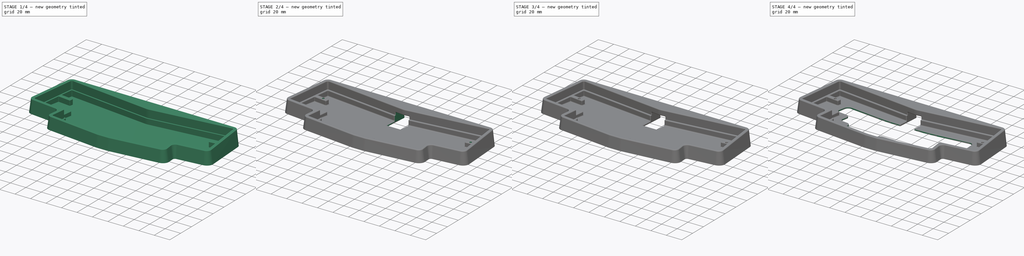
[diagram: build sequence overview — one tinted view per stage of 4, left to right]
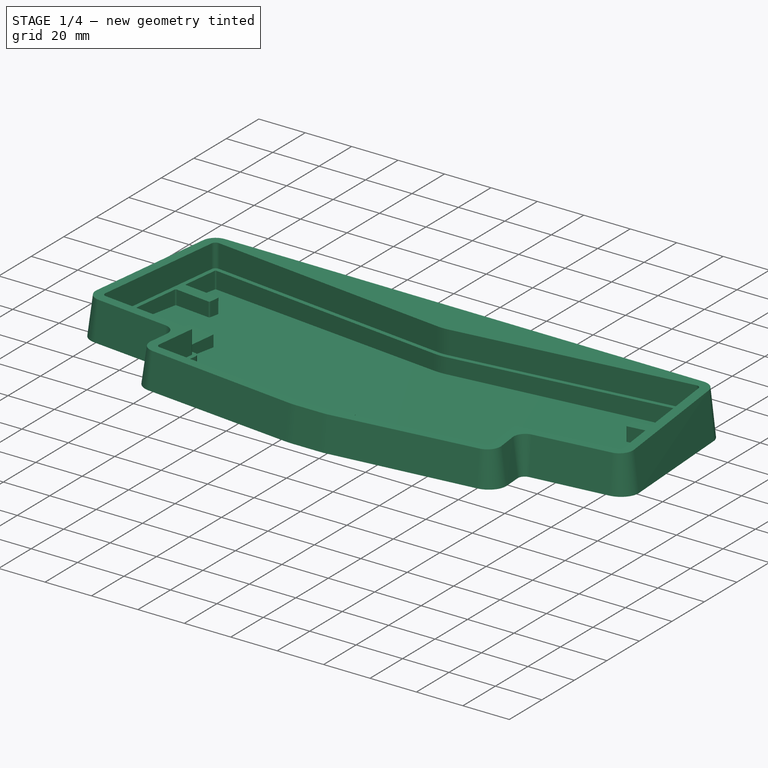
[diagram: stage 1 of 4 — iso view after this stage's code; geometry added in this stage tinted green]
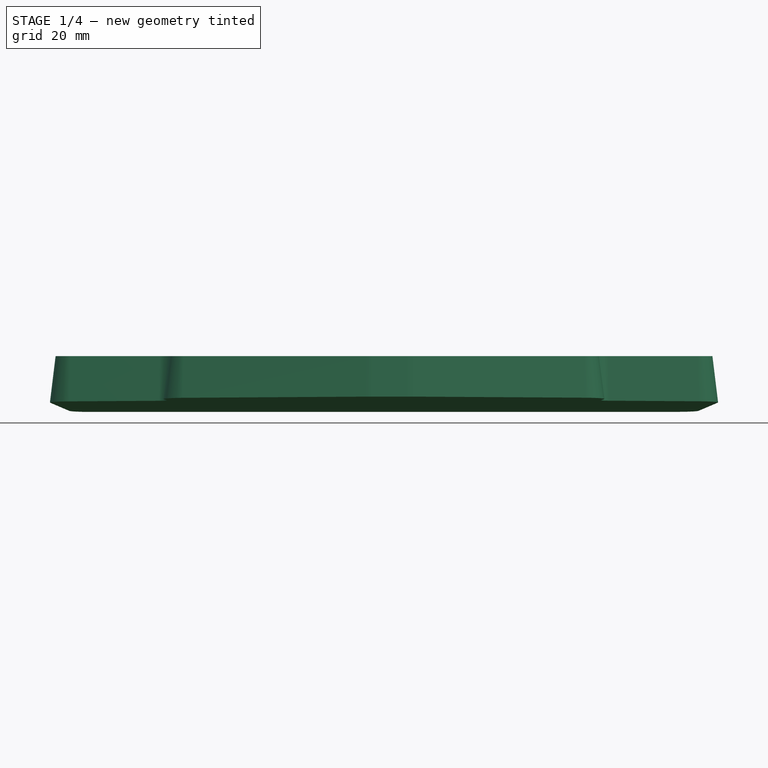
[diagram: stage 1 of 4 — front view after this stage's code; geometry added in this stage tinted green]
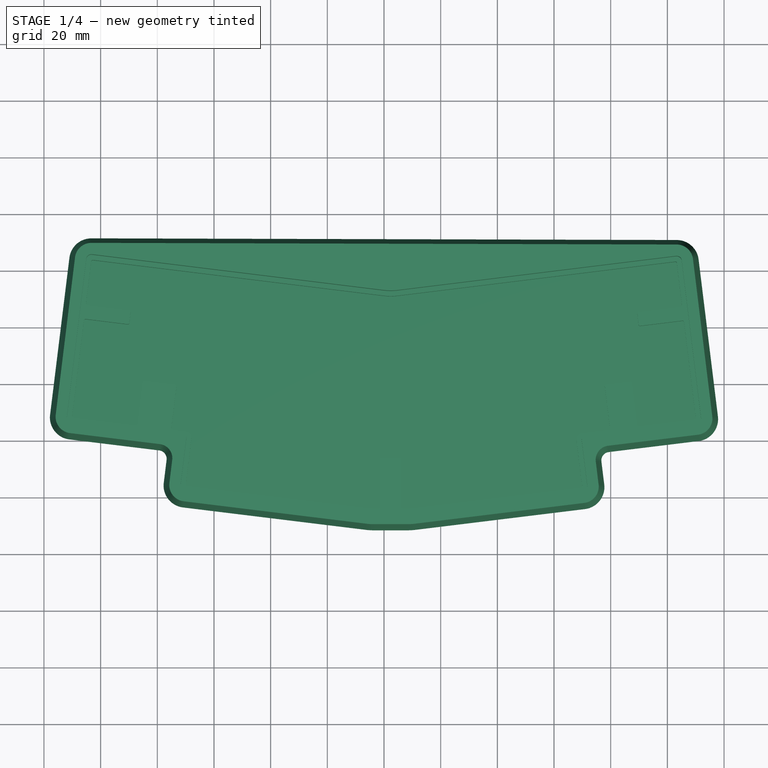
[diagram: stage 1 of 4 — top view after this stage's code; geometry added in this stage tinted green]
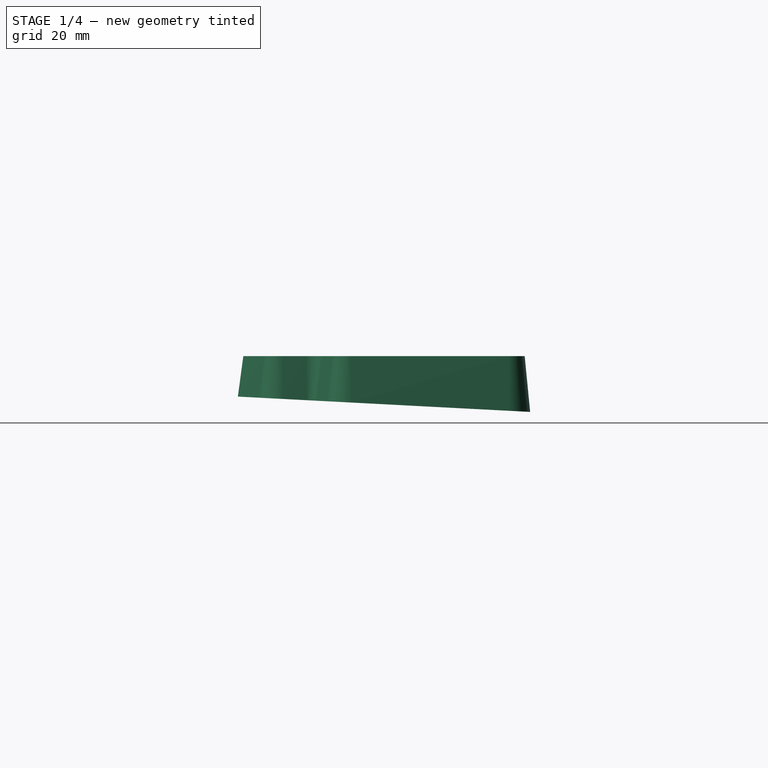
[diagram: stage 1 of 4 — right view after this stage's code; geometry added in this stage tinted green]
FCSTD DOCUMENT  (FreeCAD 0.20R)
Label: case
License: All rights reserved
LicenseURL: http://en.wikipedia.org/wiki/All_rights_reserved
objects: Sketcher::SketchObject×7, PartDesign::Pocket×4, PartDesign::Fillet×4, PartDesign::AdditiveLoft×1, PartDesign::Hole×1, PartDesign::Chamfer×1, PartDesign::Body×1
note: 30 computed .brp shape members not serialized (recipe doc carries the construction recipe); baked Part::Feature solids carry a one-line shape summary decoded from their .brp

FEATURE [Sketcher::SketchObject] Sketch
  AttachmentOffset = pos=(0,0,0) rot=(1,0,0;-0.05236rad)
  FullyConstrained = false
  MapMode = 5
  Placement = pos=(0,0,0) rot=(1,0,0;6.23083rad)
  Support = -> [XY_Plane]
  sketch-geometry (20):
    g0: ArcOfCircle CenterX=103.268 CenterY=43.2378 CenterZ=0 NormalX=0 NormalY=0 NormalZ=1 AngleXU=0 Radius=7.8 StartAngle=0.122173 EndAngle=1.56799
    g1: LineSegment StartX=111.01 StartY=44.1884 StartZ=0 EndX=117.835 EndY=-11.3942 EndZ=0
    g2: ArcOfCircle CenterX=110.093 CenterY=-12.3448 CenterZ=0 NormalX=0 NormalY=0 NormalZ=1 AngleXU=0 Radius=7.8 StartAngle=4.83456 EndAngle=6.40536
    g3: LineSegment StartX=79.3314 StartY=-23.9804 StartZ=0 EndX=111.043 EndY=-20.0867 EndZ=0
    g4: LineSegment StartX=76.7194 StartY=-27.3236 StartZ=0 EndX=77.7187 EndY=-35.4625 EndZ=0
    g5: ArcOfCircle CenterX=79.6971 CenterY=-26.958 CenterZ=0 NormalX=0 NormalY=0 NormalZ=1 AngleXU=0 Radius=3 StartAngle=1.69297 EndAngle=3.26377
    g6: ArcOfCircle CenterX=69.9769 CenterY=-36.4131 CenterZ=0 NormalX=0 NormalY=0 NormalZ=1 AngleXU=0 Radius=7.8 StartAngle=4.83456 EndAngle=6.40536
    g7: LineSegment StartX=11.0568 StartY=-51.5062 StartZ=0 EndX=70.9275 EndY=-44.155 EndZ=0
    g8: ArcOfCircle CenterX=8.37563 CenterY=-29.6701 CenterZ=0 NormalX=0 NormalY=0 NormalZ=1 AngleXU=0 Radius=22 StartAngle=4.71239 EndAngle=4.83456
    g9: LineSegment StartX=-3.66104 StartY=-51.6701 StartZ=0 EndX=8.37563 EndY=-51.6701 EndZ=0
    g10: LineSegment StartX=-70.9275 StartY=-43.5761 StartZ=0 EndX=-6.34216 EndY=-51.5062 EndZ=0
    g11: ArcOfCircle CenterX=-3.66104 CenterY=-29.6701 CenterZ=0 NormalX=0 NormalY=0 NormalZ=1 AngleXU=0 Radius=22 StartAngle=4.59022 EndAngle=4.71239
    g12: ArcOfCircle CenterX=-69.9769 CenterY=-35.8342 CenterZ=0 NormalX=0 NormalY=0 NormalZ=1 AngleXU=0 Radius=7.8 StartAngle=3.01942 EndAngle=4.59022
    g13: LineSegment StartX=-111.043 StartY=-19.5078 StartZ=0 EndX=-79.3314 EndY=-23.4015 EndZ=0
    g14: ArcOfCircle CenterX=-79.6971 CenterY=-26.3791 CenterZ=0 NormalX=0 NormalY=0 NormalZ=1 AngleXU=0 Radius=3 StartAngle=6.16101 EndAngle=7.73181
    g15: LineSegment StartX=-76.7194 StartY=-26.7448 StartZ=0 EndX=-77.7187 EndY=-34.8836 EndZ=0
    g16: ArcOfCircle CenterX=-110.093 CenterY=-11.7659 CenterZ=0 NormalX=0 NormalY=0 NormalZ=1 AngleXU=0 Radius=7.8 StartAngle=3.01942 EndAngle=4.59022
    g17: LineSegment StartX=-111.01 StartY=44.7672 StartZ=0 EndX=-117.835 EndY=-10.8153 EndZ=0
    g18: ArcOfCircle CenterX=-103.268 CenterY=43.8167 CenterZ=0 NormalX=0 NormalY=0 NormalZ=1 AngleXU=0 Radius=7.8 StartAngle=1.56799 EndAngle=3.01942
    g19: LineSegment StartX=-103.246 StartY=51.6166 StartZ=0 EndX=103.29 EndY=51.0377 EndZ=0
  constraints (20):
    c: Coincident(g16,g17)
    c: Coincident(g13,g16)
    c: Coincident(g17,g18)
    c: Coincident(g18,g19)
    c: Coincident(g13,g14)
    c: Coincident(g12,g15)
    c: Coincident(g14,g15)
    c: Coincident(g10,g12)
    c: Coincident(g10,g11)
    c: Coincident(g9,g11)
    c: Coincident(g8,g9)
    c: Coincident(g7,g8)
    c: Coincident(g6,g7)
    c: Coincident(g4,g5)
    c: Coincident(g4,g6)
    c: Coincident(g3,g5)
    c: Coincident(g0,g19)
    c: Coincident(g0,g1)
    c: Coincident(g2,g3)
    c: Coincident(g1,g2)
FEATURE [Sketcher::SketchObject] Sketch001
  AttachmentOffset = pos=(0,0,17) rot=(0,0,1;0rad)
  FullyConstrained = false
  MapMode = 5
  Placement = pos=(0,0,17) rot=(0,0,1;0rad)
  Support = -> [XY_Plane]
  sketch-geometry (20):
    g0: LineSegment StartX=109.025 StartY=43.9446 StartZ=0 EndX=115.849 EndY=-11.638 EndZ=0
    g1: ArcOfCircle CenterX=110.093 CenterY=-12.3448 CenterZ=0 NormalX=0 NormalY=0 NormalZ=1 AngleXU=0 Radius=5.8 StartAngle=4.83456 EndAngle=6.40536
    g2: ArcOfCircle CenterX=69.9769 CenterY=-36.4131 CenterZ=0 NormalX=0 NormalY=0 NormalZ=1 AngleXU=0 Radius=5.8 StartAngle=4.83456 EndAngle=6.40536
    g3: LineSegment StartX=10.813 StartY=-49.5211 StartZ=0 EndX=70.6837 EndY=-42.1699 EndZ=0
    g4: ArcOfCircle CenterX=8.37563 CenterY=-29.6701 CenterZ=0 NormalX=0 NormalY=0 NormalZ=1 AngleXU=0 Radius=20 StartAngle=4.71239 EndAngle=4.83456
    g5: LineSegment StartX=-3.66104 StartY=-49.6701 StartZ=0 EndX=8.37563 EndY=-49.6701 EndZ=0
    g6: LineSegment StartX=-70.6837 StartY=-41.591 StartZ=0 EndX=-6.09842 EndY=-49.5211 EndZ=0
    g7: ArcOfCircle CenterX=-3.66104 CenterY=-29.6701 CenterZ=0 NormalX=0 NormalY=0 NormalZ=1 AngleXU=0 Radius=20 StartAngle=4.59022 EndAngle=4.71239
    g8: LineSegment StartX=-109.025 StartY=44.5235 StartZ=0 EndX=-115.849 EndY=-11.0591 EndZ=0
    g9: ArcOfCircle CenterX=-110.093 CenterY=-11.7659 CenterZ=0 NormalX=0 NormalY=0 NormalZ=1 AngleXU=0 Radius=5.8 StartAngle=3.01942 EndAngle=4.59022
    g10: ArcOfCircle CenterX=-69.9769 CenterY=-35.8342 CenterZ=0 NormalX=0 NormalY=0 NormalZ=1 AngleXU=0 Radius=5.8 StartAngle=3.01942 EndAngle=4.59022
    g11: LineSegment StartX=74.7343 StartY=-27.5674 StartZ=0 EndX=75.7337 EndY=-35.7063 EndZ=0
    g12: LineSegment StartX=79.0877 StartY=-21.9953 StartZ=0 EndX=110.8 EndY=-18.1016 EndZ=0
    g13: ArcOfCircle CenterX=79.6971 CenterY=-26.958 CenterZ=0 NormalX=0 NormalY=0 NormalZ=1 AngleXU=0 Radius=5 StartAngle=1.69297 EndAngle=3.26377
    g14: LineSegment StartX=-110.8 StartY=-17.5227 StartZ=0 EndX=-79.0877 EndY=-21.4164 EndZ=0
    g15: LineSegment StartX=-74.7343 StartY=-26.9885 StartZ=0 EndX=-75.7337 EndY=-35.1274 EndZ=0
    g16: ArcOfCircle CenterX=-79.6971 CenterY=-26.3791 CenterZ=0 NormalX=0 NormalY=0 NormalZ=1 AngleXU=0 Radius=5 StartAngle=6.16101 EndAngle=7.73181
    g17: ArcOfCircle CenterX=103.268 CenterY=43.2378 CenterZ=0 NormalX=0 NormalY=0 NormalZ=1 AngleXU=0 Radius=5.8 StartAngle=0.122173 EndAngle=1.56799
    g18: ArcOfCircle CenterX=-103.268 CenterY=43.8167 CenterZ=0 NormalX=0 NormalY=0 NormalZ=1 AngleXU=0 Radius=5.8 StartAngle=1.56799 EndAngle=3.01942
    g19: LineSegment StartX=103.284 StartY=49.0378 StartZ=0 EndX=-103.252 EndY=49.6166 EndZ=0
  constraints (20):
    c: Coincident(g8,g9)
    c: Coincident(g9,g14)
    c: Coincident(g8,g18)
    c: Coincident(g18,g19)
    c: Coincident(g14,g16)
    c: Coincident(g10,g15)
    c: Coincident(g15,g16)
    c: Coincident(g6,g10)
    c: Coincident(g6,g7)
    c: Coincident(g5,g7)
    c: Coincident(g4,g5)
    c: Coincident(g3,g4)
    c: Coincident(g2,g3)
    c: Coincident(g11,g13)
    c: Coincident(g2,g11)
    c: Coincident(g12,g13)
    c: Coincident(g17,g19)
    c: Coincident(g0,g17)
    c: Coincident(g1,g12)
    c: Coincident(g0,g1)
FEATURE [PartDesign::AdditiveLoft] AdditiveLoft
  Closed = true
  Profile = -> Sketch
  Ruled = true
  Sections = -> [Sketch001]
FEATURE [Sketcher::SketchObject] Sketch002
  FullyConstrained = false
  MapMode = 5
  Placement = pos=(0,0,17) rot=(0,0,1;0rad)
  Support = -> [AdditiveLoft]
  sketch-geometry (22):
    g0: ArcOfCircle CenterX=103.268 CenterY=43.2378 CenterZ=0 NormalX=0 NormalY=0 NormalZ=1 AngleXU=0 Radius=1.8 StartAngle=0.122173 EndAngle=1.69297
    g1: LineSegment StartX=105.055 StartY=43.4571 StartZ=0 EndX=111.879 EndY=-12.1254 EndZ=0
    g2: ArcOfCircle CenterX=110.093 CenterY=-12.3448 CenterZ=0 NormalX=0 NormalY=0 NormalZ=1 AngleXU=0 Radius=1.8 StartAngle=4.83456 EndAngle=6.40536
    g3: LineSegment StartX=69.8658 StartY=-19.0976 StartZ=0 EndX=110.312 EndY=-14.1314 EndZ=0
    g4: ArcOfCircle CenterX=69.8902 CenterY=-19.2961 CenterZ=0 NormalX=0 NormalY=0 NormalZ=1 AngleXU=0 Radius=0.2 StartAngle=1.69297 EndAngle=3.26377
    g5: LineSegment StartX=69.6917 StartY=-19.3204 StartZ=0 EndX=71.7635 EndY=-36.1937 EndZ=0
    g6: ArcOfCircle CenterX=69.9769 CenterY=-36.4131 CenterZ=0 NormalX=0 NormalY=0 NormalZ=1 AngleXU=0 Radius=1.8 StartAngle=4.83456 EndAngle=6.40536
    g7: ArcOfCircle CenterX=-69.9769 CenterY=-35.8342 CenterZ=0 NormalX=0 NormalY=0 NormalZ=1 AngleXU=0 Radius=1.8 StartAngle=3.01942 EndAngle=4.59022
    g8: LineSegment StartX=-69.6917 StartY=-18.7416 StartZ=0 EndX=-71.7635 EndY=-35.6149 EndZ=0
    g9: LineSegment StartX=-110.312 StartY=-13.5525 StartZ=0 EndX=-69.8658 EndY=-18.5187 EndZ=0
    g10: ArcOfCircle CenterX=-69.8902 CenterY=-18.7172 CenterZ=0 NormalX=0 NormalY=0 NormalZ=1 AngleXU=0 Radius=0.2 StartAngle=6.16101 EndAngle=7.73181
    g11: ArcOfCircle CenterX=-110.093 CenterY=-11.7659 CenterZ=0 NormalX=0 NormalY=0 NormalZ=1 AngleXU=0 Radius=1.8 StartAngle=3.01942 EndAngle=4.59022
    g12: LineSegment StartX=-105.055 StartY=44.036 StartZ=0 EndX=-111.879 EndY=-11.5466 EndZ=0
    g13: ArcOfCircle CenterX=-103.268 CenterY=43.8167 CenterZ=0 NormalX=0 NormalY=0 NormalZ=1 AngleXU=0 Radius=1.8 StartAngle=1.44862 EndAngle=3.01942
    g14: LineSegment StartX=10.5684 StartY=-45.5211 StartZ=0 EndX=70.1962 EndY=-38.1997 EndZ=0
    g15: ArcOfCircle CenterX=8.13098 CenterY=-25.6701 CenterZ=0 NormalX=0 NormalY=0 NormalZ=1 AngleXU=0 Radius=20 StartAngle=4.71239 EndAngle=4.83456
    g16: LineSegment StartX=-3.41639 StartY=-45.6701 StartZ=0 EndX=8.13098 EndY=-45.6701 EndZ=0
    g17: LineSegment StartX=-70.1962 StartY=-37.6208 StartZ=0 EndX=-5.85377 EndY=-45.5211 EndZ=0
    g18: ArcOfCircle CenterX=-3.41639 CenterY=-25.6701 CenterZ=0 NormalX=0 NormalY=0 NormalZ=1 AngleXU=0 Radius=20 StartAngle=4.59022 EndAngle=4.71239
    g19: LineSegment StartX=4.79468 StartY=32.9603 StartZ=0 EndX=103.049 EndY=45.0244 EndZ=0
    g20: LineSegment StartX=-103.049 StartY=45.6032 StartZ=0 EndX=-0.0800892 EndY=32.9603 EndZ=0
    g21: ArcOfCircle CenterX=2.3573 CenterY=52.8112 CenterZ=0 NormalX=0 NormalY=0 NormalZ=1 AngleXU=0 Radius=20 StartAngle=4.59022 EndAngle=4.83456
FEATURE [PartDesign::Pocket] Pocket
  BaseFeature = -> AdditiveLoft
  Direction = (0,0,-1)
  Length = 10
  Length2 = 5
  Profile = -> Sketch002
  ReferenceAxis = -> Sketch002 [N_Axis]
  Type = 0
FEATURE [Sketcher::SketchObject] Sketch003
  FullyConstrained = false
  MapMode = 5
  Placement = pos=(0,0,7) rot=(0,0,1;0rad)
  Support = -> [Pocket]
  sketch-geometry (62):
    g0: ArcOfCircle CenterX=2.3573 CenterY=52.0052 CenterZ=0 NormalX=0 NormalY=0 NormalZ=1 AngleXU=0 Radius=21 StartAngle=4.59022 EndAngle=4.83456
    g1: ArcOfCircle CenterX=69.8902 CenterY=-19.2961 CenterZ=0 NormalX=0 NormalY=0 NormalZ=1 AngleXU=0 Radius=2 StartAngle=1.69297 EndAngle=3.26377
    g2: ArcOfCircle CenterX=8.08205 CenterY=-24.8701 CenterZ=0 NormalX=0 NormalY=0 NormalZ=1 AngleXU=0 Radius=19 StartAngle=4.71239 EndAngle=4.83456
    g3: ArcOfCircle CenterX=-3.36746 CenterY=-24.8701 CenterZ=0 NormalX=0 NormalY=0 NormalZ=1 AngleXU=0 Radius=19 StartAngle=4.59022 EndAngle=4.71239
    g4: ArcOfCircle CenterX=-69.8902 CenterY=-18.7172 CenterZ=0 NormalX=0 NormalY=0 NormalZ=1 AngleXU=0 Radius=2 StartAngle=6.16101 EndAngle=7.73181
    g5: LineSegment StartX=-69.4806 StartY=-35.8952 StartZ=0 EndX=-5.68297 EndY=-43.7285 EndZ=0
    g6: LineSegment StartX=-67.9051 StartY=-18.9609 StartZ=0 EndX=-69.9159 EndY=-35.3379 EndZ=0
    g7: ArcOfCircle CenterX=-69.4197 CenterY=-35.3989 CenterZ=0 NormalX=0 NormalY=0 NormalZ=1 AngleXU=0 Radius=0.5 StartAngle=3.01942 EndAngle=4.59022
    g8: ArcOfCircle CenterX=-109.536 CenterY=-11.3306 CenterZ=0 NormalX=0 NormalY=0 NormalZ=1 AngleXU=0 Radius=0.5 StartAngle=3.01942 EndAngle=4.59022
    g9: LineSegment StartX=-102.772 StartY=43.7557 StartZ=0 EndX=-0.201959 EndY=31.1617 EndZ=0
    g10: ArcOfCircle CenterX=-102.833 CenterY=43.2595 CenterZ=0 NormalX=0 NormalY=0 NormalZ=1 AngleXU=0 Radius=0.5 StartAngle=1.44862 EndAngle=3.01942
    g11: LineSegment StartX=4.91655 StartY=31.1617 StartZ=0 EndX=102.772 EndY=43.1768 EndZ=0
    g12: ArcOfCircle CenterX=102.833 CenterY=42.6806 CenterZ=0 NormalX=0 NormalY=0 NormalZ=1 AngleXU=0 Radius=0.5 StartAngle=0.122173 EndAngle=1.69297
    g13: ArcOfCircle CenterX=109.536 CenterY=-11.9095 CenterZ=0 NormalX=0 NormalY=0 NormalZ=1 AngleXU=0 Radius=0.5 StartAngle=4.83456 EndAngle=6.40536
    g14: LineSegment StartX=10.3976 StartY=-43.7285 StartZ=0 EndX=69.4806 EndY=-36.474 EndZ=0
    g15: LineSegment StartX=67.9051 StartY=-19.5398 StartZ=0 EndX=69.9159 EndY=-35.9168 EndZ=0
    g16: ArcOfCircle CenterX=69.4197 CenterY=-35.9778 CenterZ=0 NormalX=0 NormalY=0 NormalZ=1 AngleXU=0 Radius=0.5 StartAngle=4.83456 EndAngle=6.40536
    g17: LineSegment StartX=103.329 StartY=42.7415 StartZ=0 EndX=105.157 EndY=27.8533 EndZ=0
    g18: ArcOfCircle CenterX=104.661 CenterY=27.7924 CenterZ=0 NormalX=0 NormalY=0 NormalZ=1 AngleXU=0 Radius=0.5 StartAngle=4.83456 EndAngle=6.40536
    g19: LineSegment StartX=89.8335 StartY=25.4681 StartZ=0 EndX=104.722 EndY=27.2961 EndZ=0
    g20: ArcOfCircle CenterX=89.8944 CenterY=24.9718 CenterZ=0 NormalX=0 NormalY=0 NormalZ=1 AngleXU=0 Radius=0.5 StartAngle=1.69297 EndAngle=3.26377
    g21: LineSegment StartX=89.8856 StartY=20.9407 StartZ=0 EndX=89.3981 EndY=24.9109 EndZ=0
    g22: ArcOfCircle CenterX=90.3819 CenterY=21.0016 CenterZ=0 NormalX=0 NormalY=0 NormalZ=1 AngleXU=0 Radius=0.5 StartAngle=3.26377 EndAngle=4.83456
    g23: LineSegment StartX=90.4428 StartY=20.5053 StartZ=0 EndX=105.331 EndY=22.3334 EndZ=0
    g24: LineSegment StartX=105.888 StartY=21.898 StartZ=0 EndX=110.032 EndY=-11.8485 EndZ=0
    g25: ArcOfCircle CenterX=105.392 CenterY=21.8371 CenterZ=0 NormalX=0 NormalY=0 NormalZ=1 AngleXU=0 Radius=0.5 StartAngle=0.122173 EndAngle=1.69297
    g26: LineSegment StartX=89.9937 StartY=-14.8127 StartZ=0 EndX=109.596 EndY=-12.4057 EndZ=0
    g27: ArcOfCircle CenterX=89.9327 CenterY=-14.3164 CenterZ=0 NormalX=0 NormalY=0 NormalZ=1 AngleXU=0 Radius=0.5 StartAngle=3.26377 EndAngle=4.83456
    g28: LineSegment StartX=69.6465 StartY=-17.311 StartZ=0 EndX=79.3238 EndY=-16.1228 EndZ=0
    g29: ArcOfCircle CenterX=79.2628 CenterY=-15.6265 CenterZ=0 NormalX=0 NormalY=0 NormalZ=1 AngleXU=0 Radius=0.5 StartAngle=4.83456 EndAngle=6.40536
    g30: LineSegment StartX=77.9311 StartY=-0.677355 StartZ=0 EndX=79.7591 EndY=-15.5655 EndZ=0
    g31: ArcOfCircle CenterX=78.4274 CenterY=-0.61642 CenterZ=0 NormalX=0 NormalY=0 NormalZ=1 AngleXU=0 Radius=0.5 StartAngle=1.69297 EndAngle=3.26377
    g32: LineSegment StartX=78.3664 StartY=-0.120147 StartZ=0 EndX=87.0512 EndY=0.94621 EndZ=0
    g33: LineSegment StartX=87.6084 StartY=0.510871 StartZ=0 EndX=89.4364 EndY=-14.3773 EndZ=0
    g34: ArcOfCircle CenterX=87.1121 CenterY=0.449937 CenterZ=0 NormalX=0 NormalY=0 NormalZ=1 AngleXU=0 Radius=0.5 StartAngle=0.122173 EndAngle=1.69297
    g35: LineSegment StartX=6.6738 StartY=-43.8701 StartZ=0 EndX=8.08205 EndY=-43.8701 EndZ=0
    g36: ArcOfCircle CenterX=6.6738 CenterY=-43.3701 CenterZ=0 NormalX=0 NormalY=0 NormalZ=1 AngleXU=0 Radius=0.5 StartAngle=3.14159 EndAngle=4.71239
    g37: LineSegment StartX=-3.36746 StartY=-43.8701 StartZ=0 EndX=-1.9592 EndY=-43.8701 EndZ=0
    g38: ArcOfCircle CenterX=-1.9592 CenterY=-43.3701 CenterZ=0 NormalX=0 NormalY=0 NormalZ=1 AngleXU=0 Radius=0.5 StartAngle=4.71239 EndAngle=6.28319
    g39: LineSegment StartX=-1.4592 StartY=-43.3701 StartZ=0 EndX=-1.4592 EndY=-26.5 EndZ=0
    g40: ArcOfCircle CenterX=-0.959204 CenterY=-26.5 CenterZ=0 NormalX=0 NormalY=0 NormalZ=1 AngleXU=0 Radius=0.5 StartAngle=1.5708 EndAngle=3.14159
    g41: LineSegment StartX=-0.959204 StartY=-26 StartZ=0 EndX=5.6738 EndY=-26 EndZ=0
    g42: LineSegment StartX=6.1738 StartY=-43.3701 StartZ=0 EndX=6.1738 EndY=-26.5 EndZ=0
    g43: ArcOfCircle CenterX=5.6738 CenterY=-26.5 CenterZ=0 NormalX=0 NormalY=0 NormalZ=1 AngleXU=0 Radius=0.5 StartAngle=0 EndAngle=1.5708
    g44: ArcOfCircle CenterX=-84.7548 CenterY=0.739377 CenterZ=0 NormalX=0 NormalY=0 NormalZ=1 AngleXU=0 Radius=0.5 StartAngle=1.44862 EndAngle=3.01942
    g45: LineSegment StartX=-84.6939 StartY=1.23565 StartZ=0 EndX=-73.6518 EndY=-0.120147 EndZ=0
    g46: ArcOfCircle CenterX=-73.7128 CenterY=-0.61642 CenterZ=0 NormalX=0 NormalY=0 NormalZ=1 AngleXU=0 Radius=0.5 StartAngle=6.16101 EndAngle=7.73181
    g47: LineSegment StartX=-73.2165 StartY=-0.677355 StartZ=0 EndX=-75.0445 EndY=-15.5655 EndZ=0
    g48: LineSegment StartX=-74.6092 StartY=-16.1228 StartZ=0 EndX=-69.6465 EndY=-16.7321 EndZ=0
    g49: ArcOfCircle CenterX=-74.5483 CenterY=-15.6265 CenterZ=0 NormalX=0 NormalY=0 NormalZ=1 AngleXU=0 Radius=0.5 StartAngle=3.01942 EndAngle=4.59022
    g50: LineSegment StartX=-85.2511 StartY=0.800311 StartZ=0 EndX=-87.0792 EndY=-14.0879 EndZ=0
    g51: LineSegment StartX=-109.596 StartY=-11.8269 StartZ=0 EndX=-87.6364 EndY=-14.5232 EndZ=0
    g52: ArcOfCircle CenterX=-87.5754 CenterY=-14.0269 CenterZ=0 NormalX=0 NormalY=0 NormalZ=1 AngleXU=0 Radius=0.5 StartAngle=4.59022 EndAngle=6.16101
    g53: ArcOfCircle CenterX=-89.8944 CenterY=25.5507 CenterZ=0 NormalX=0 NormalY=0 NormalZ=1 AngleXU=0 Radius=0.5 StartAngle=6.16101 EndAngle=7.73181
    g54: LineSegment StartX=-89.8856 StartY=21.5196 StartZ=0 EndX=-89.3981 EndY=25.4897 EndZ=0
    g55: ArcOfCircle CenterX=-90.3819 CenterY=21.5805 CenterZ=0 NormalX=0 NormalY=0 NormalZ=1 AngleXU=0 Radius=0.5 StartAngle=4.59022 EndAngle=6.16101
    g56: LineSegment StartX=-90.4428 StartY=21.0842 StartZ=0 EndX=-105.331 EndY=22.9123 EndZ=0
    g57: LineSegment StartX=-105.888 StartY=22.4769 StartZ=0 EndX=-110.032 EndY=-11.2697 EndZ=0
    g58: ArcOfCircle CenterX=-105.392 CenterY=22.416 CenterZ=0 NormalX=0 NormalY=0 NormalZ=1 AngleXU=0 Radius=0.5 StartAngle=1.44862 EndAngle=3.01942
    g59: LineSegment StartX=-104.722 StartY=27.875 StartZ=0 EndX=-89.8335 EndY=26.0469 EndZ=0
    g60: LineSegment StartX=-103.329 StartY=43.3204 StartZ=0 EndX=-105.157 EndY=28.4322 EndZ=0
    g61: ArcOfCircle CenterX=-104.661 CenterY=28.3713 CenterZ=0 NormalX=0 NormalY=0 NormalZ=1 AngleXU=0 Radius=0.5 StartAngle=3.01942 EndAngle=4.59022
  constraints (62):
    c: Coincident(g8,g57)
    c: Coincident(g8,g51)
    c: Coincident(g57,g58)
    c: Coincident(g56,g58)
    c: Coincident(g60,g61)
    c: Coincident(g59,g61)
    c: Coincident(g10,g60)
    c: Coincident(g9,g10)
    c: Coincident(g55,g56)
    c: Coincident(g54,g55)
    c: Coincident(g53,g59)
    c: Coincident(g53,g54)
    c: Coincident(g51,g52)
    c: Coincident(g50,g52)
    c: Coincident(g44,g50)
    c: Coincident(g44,g45)
    c: Coincident(g47,g49)
    c: Coincident(g48,g49)
    c: Coincident(g45,g46)
    c: Coincident(g46,g47)
    c: Coincident(g6,g7)
    c: Coincident(g4,g48)
    c: Coincident(g5,g7)
    c: Coincident(g4,g6)
    c: Coincident(g3,g5)
    c: Coincident(g3,g37)
    c: Coincident(g37,g38)
    c: Coincident(g38,g39)
    c: Coincident(g39,g40)
    c: Coincident(g40,g41)
    c: Coincident(g0,g9)
    c: Coincident(g0,g11)
    c: Coincident(g41,g43)
    c: Coincident(g36,g42)
    c: Coincident(g42,g43)
    c: Coincident(g35,g36)
    c: Coincident(g2,g35)
    c: Coincident(g2,g14)
    c: Coincident(g1,g15)
    c: Coincident(g14,g16)
    c: Coincident(g1,g28)
    c: Coincident(g15,g16)
    c: Coincident(g30,g31)
    c: Coincident(g31,g32)
    c: Coincident(g28,g29)
    c: Coincident(g29,g30)
    c: Coincident(g32,g34)
    c: Coincident(g33,g34)
    c: Coincident(g20,g21)
    c: Coincident(g27,g33)
    c: Coincident(g19,g20)
    c: Coincident(g21,g22)
    c: Coincident(g26,g27)
    c: Coincident(g22,g23)
    c: Coincident(g11,g12)
    c: Coincident(g12,g17)
    c: Coincident(g18,g19)
    c: Coincident(g17,g18)
    c: Coincident(g23,g25)
    c: Coincident(g24,g25)
    c: Coincident(g13,g26)
    c: Coincident(g13,g24)
FEATURE [PartDesign::Pocket] Pocket001
  BaseFeature = -> Pocket
  Direction = (0,0,-1)
  Length = 0
  Length2 = 5
  Offset = -2
  Profile = -> Sketch003
  ReferenceAxis = -> Sketch003 [N_Axis]
  Type = 3
  UpToFace = -> Pocket [Face1]
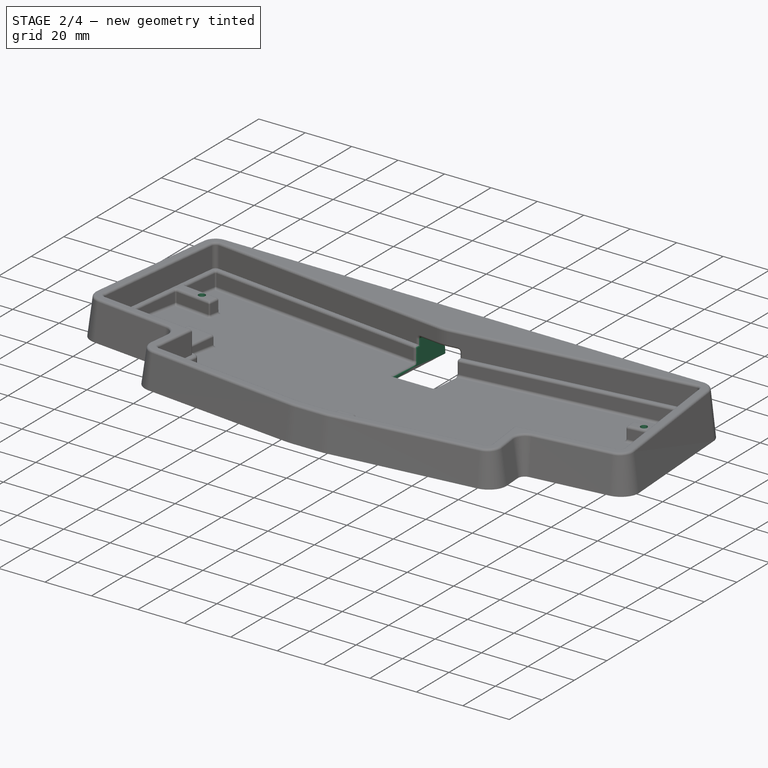
[diagram: stage 2 of 4 — iso view after this stage's code; geometry added in this stage tinted green]
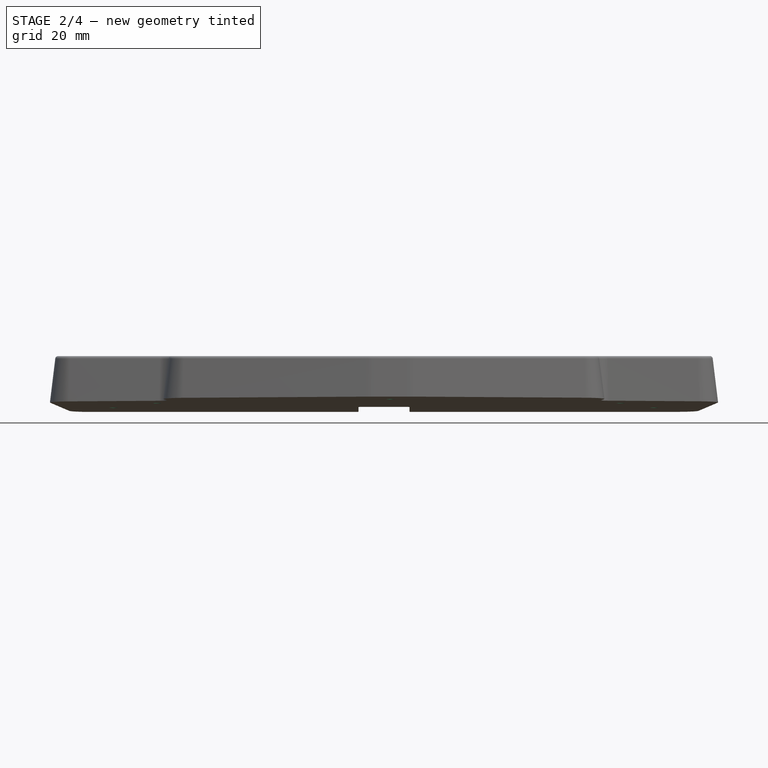
[diagram: stage 2 of 4 — front view after this stage's code; geometry added in this stage tinted green]
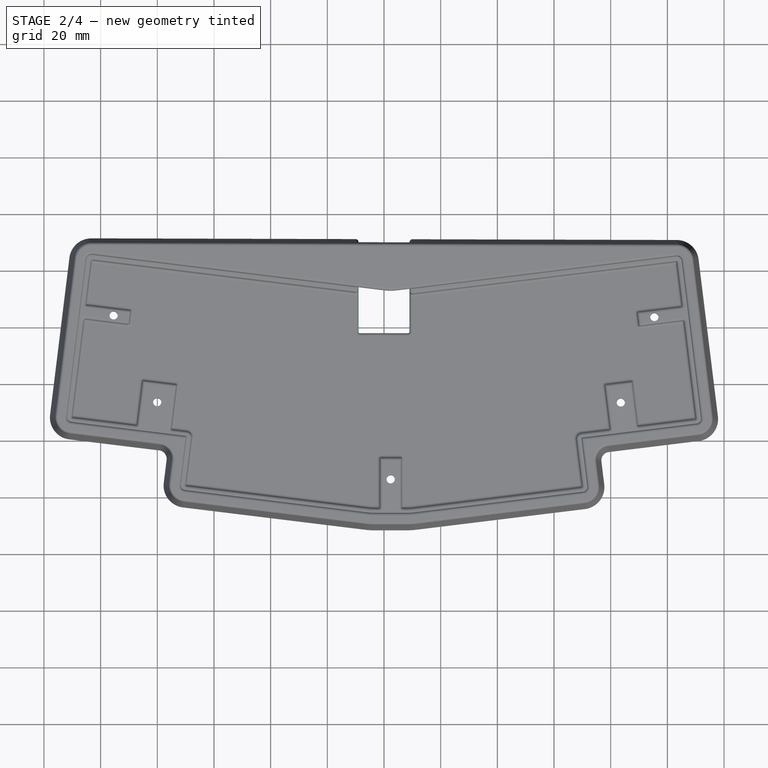
[diagram: stage 2 of 4 — top view after this stage's code; geometry added in this stage tinted green]
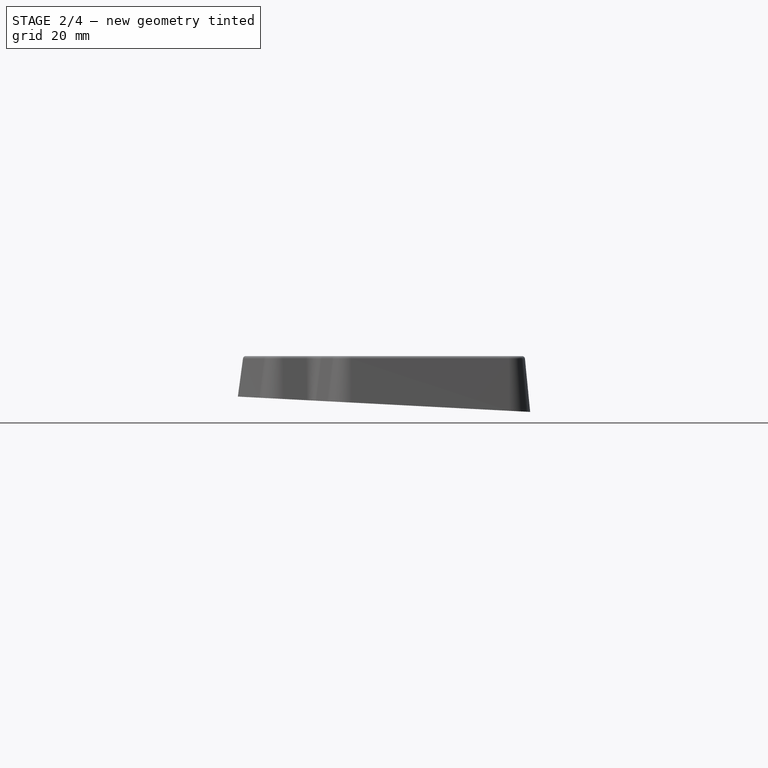
[diagram: stage 2 of 4 — right view after this stage's code; geometry added in this stage tinted green]
FEATURE [Sketcher::SketchObject] Sketch004
  FullyConstrained = false
  MapMode = 5
  Placement = pos=(0,0,7) rot=(0,0,1;0rad)
  Support = -> [Pocket]
  sketch-geometry (5):
    g0: Circle CenterX=2.3573 CenterY=-33.6383 CenterZ=0 NormalX=0 NormalY=0 NormalZ=-1 AngleXU=0 Radius=1.5
    g1: Circle CenterX=95.4111 CenterY=23.6341 CenterZ=0 NormalX=0 NormalY=0 NormalZ=-1 AngleXU=0 Radius=1.5
    g2: Circle CenterX=-95.4111 CenterY=24.213 CenterZ=0 NormalX=0 NormalY=0 NormalZ=-1 AngleXU=0 Radius=1.5
    g3: Circle CenterX=83.5619 CenterY=-6.53479 CenterZ=0 NormalX=0 NormalY=0 NormalZ=-1 AngleXU=0 Radius=1.5
    g4: Circle CenterX=-80.0259 CenterY=-6.39007 CenterZ=0 NormalX=0 NormalY=0 NormalZ=-1 AngleXU=0 Radius=1.5
FEATURE [PartDesign::Hole] Hole
  BaseFeature = -> Pocket001
  CustomThreadClearance = 0
  Depth = 25
  DepthType = 0
  Diameter = 2.9
  DrillForDepth = false
  DrillPoint = 1
  DrillPointAngle = 118
  HoleCutCountersinkAngle = 90
  HoleCutCustomValues = false
  HoleCutDepth = 0
  HoleCutDiameter = 6.1
  HoleCutType = 0
  ModelThread = false
  Profile = -> Sketch004
  Tapered = false
  TaperedAngle = 90
  ThreadClass = 0
  ThreadDepth = 25
  ThreadDepthType = 0
  ThreadDirection = 0
  ThreadFit = 0
  ThreadSize = 8
  ThreadType = 1
  Threaded = false
  UseCustomThreadClearance = false
FEATURE [Sketcher::SketchObject] Sketch005
  AttachmentOffset = pos=(0,0,3) rot=(0,0,1;0rad)
  FullyConstrained = false
  MapMode = 5
  Placement = pos=(0,0,10) rot=(0,0,1;0rad)
  Support = -> [Pocket]
  sketch-geometry (8):
    g0: LineSegment StartX=-8.5 StartY=60 StartZ=0 EndX=8.5 EndY=60 EndZ=0
    g1: ArcOfCircle CenterX=8.5 CenterY=59.5 CenterZ=0 NormalX=0 NormalY=0 NormalZ=1 AngleXU=-3.14159 Radius=0.5 StartAngle=3.14159 EndAngle=4.71239
    g2: LineSegment StartX=9 StartY=59.5 StartZ=0 EndX=9 EndY=18.5 EndZ=0
    g3: ArcOfCircle CenterX=8.5 CenterY=18.5 CenterZ=0 NormalX=0 NormalY=0 NormalZ=1 AngleXU=-3.14159 Radius=0.5 StartAngle=1.5708 EndAngle=3.14159
    g4: LineSegment StartX=8.5 StartY=18 StartZ=0 EndX=-8.5 EndY=18 EndZ=0
    g5: ArcOfCircle CenterX=-8.5 CenterY=18.5 CenterZ=0 NormalX=0 NormalY=0 NormalZ=1 AngleXU=-3.14159 Radius=0.5 StartAngle=0 EndAngle=1.5708
    g6: LineSegment StartX=-9 StartY=18.5 StartZ=0 EndX=-9 EndY=59.5 EndZ=0
    g7: ArcOfCircle CenterX=-8.5 CenterY=59.5 CenterZ=0 NormalX=0 NormalY=0 NormalZ=1 AngleXU=-3.14159 Radius=0.5 StartAngle=4.71239 EndAngle=6.28319
  constraints (9):
    c: Coincident(g5,g6)
    c: Coincident(g6,g7)
    c: Coincident(g4,g5)
    c: Coincident(g0,g7)
    c: Coincident(g3,g4)
    c: Coincident(g0,g1)
    c: Coincident(g2,g3)
    c: Coincident(g1,g2)
    c: Horizontal(g3,g5)
FEATURE [PartDesign::Pocket] Pocket002
  BaseFeature = -> Hole
  Direction = (0,0,-1)
  Length = 5
  Length2 = 5
  Profile = -> Sketch005
  ReferenceAxis = -> Sketch005 [N_Axis]
  Type = 1
FEATURE [PartDesign::Fillet] Fillet
  Base = -> Pocket002 [Edge188,Edge70,Edge71,Edge69,Face34,Edge126,Edge125,Edge124,Edge81,Edge82,Edge83,Face33,Edge65,Edge63,Face32]
  BaseFeature = -> Pocket002
  Radius = 1
  SupportTransform = false
  UseAllEdges = false
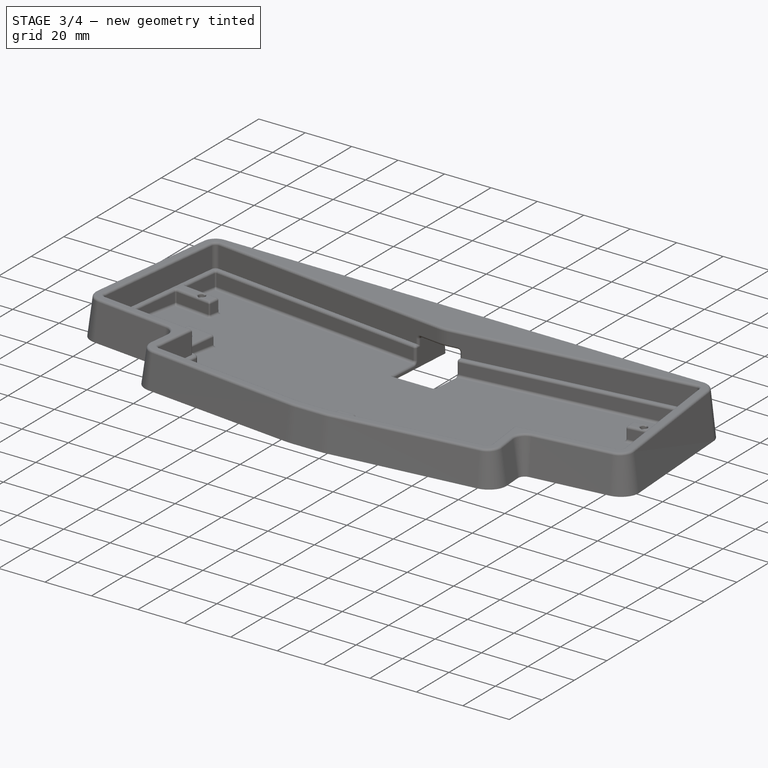
[diagram: stage 3 of 4 — iso view after this stage's code; geometry added in this stage tinted green]
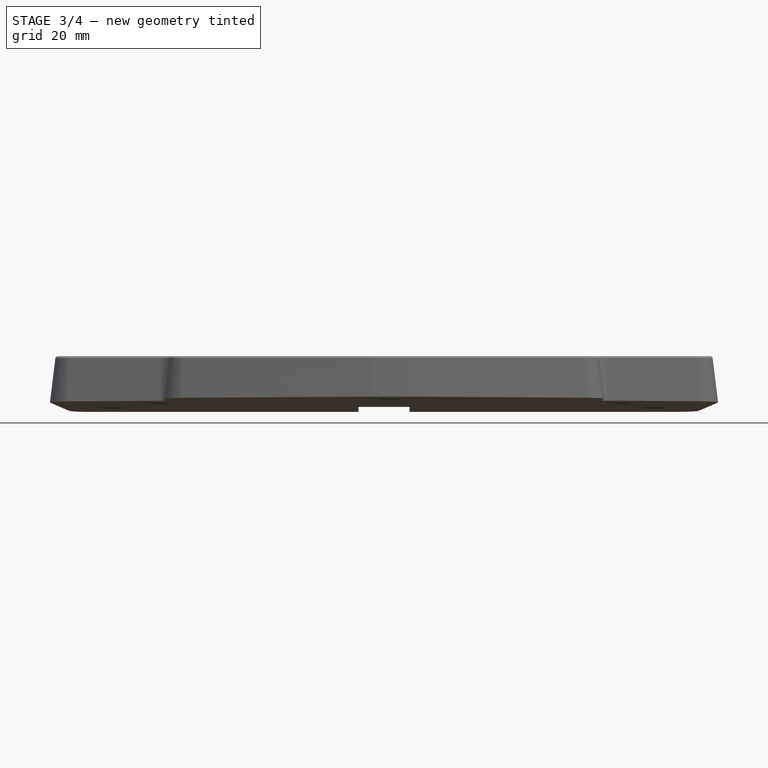
[diagram: stage 3 of 4 — front view after this stage's code; geometry added in this stage tinted green]
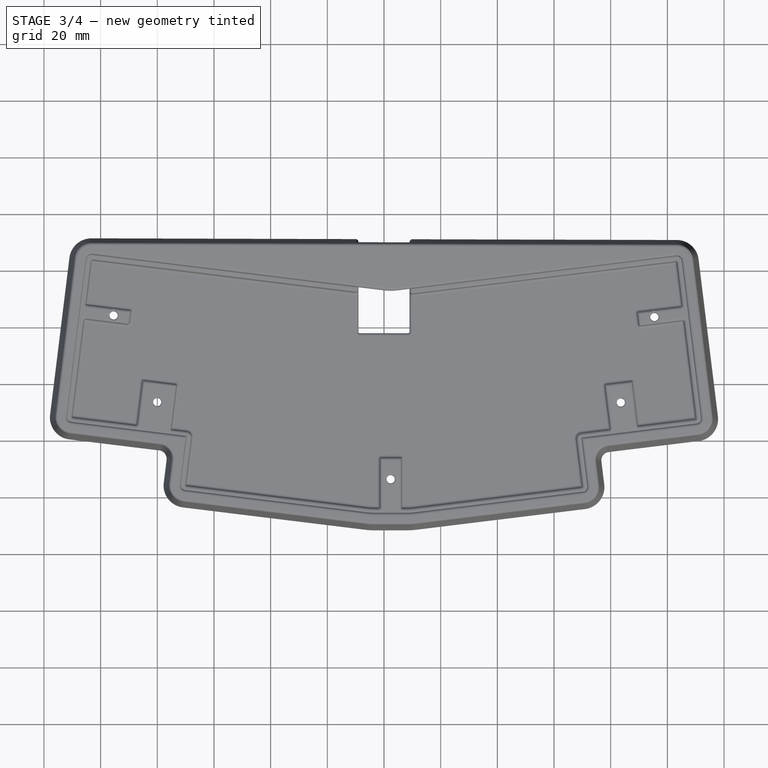
[diagram: stage 3 of 4 — top view after this stage's code; geometry added in this stage tinted green]
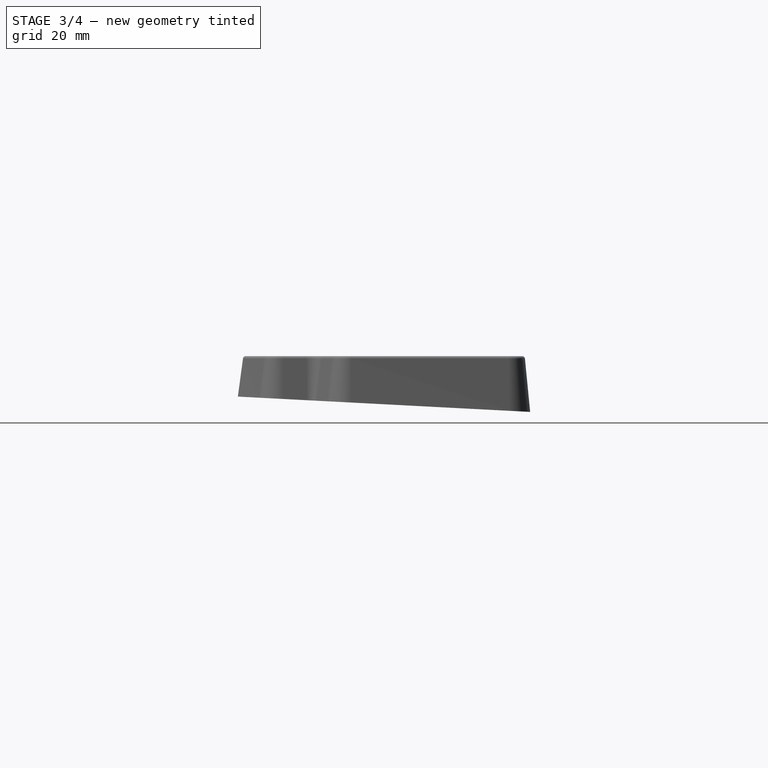
[diagram: stage 3 of 4 — right view after this stage's code; geometry added in this stage tinted green]
FEATURE [PartDesign::Chamfer] Chamfer
  Angle = 45
  Base = -> Fillet [Edge29,Edge31,Edge30,Edge32,Edge33]
  BaseFeature = -> Fillet
  ChamferType = 0
  FlipDirection = false
  Size = 3
  Size2 = 1
  SupportTransform = false
  UseAllEdges = false
FEATURE [PartDesign::Fillet] Fillet001
  Base = -> Chamfer [Face73,Face34,Face74,Face75,Face76]
  BaseFeature = -> Chamfer
  Radius = 0.5
  SupportTransform = false
  UseAllEdges = false
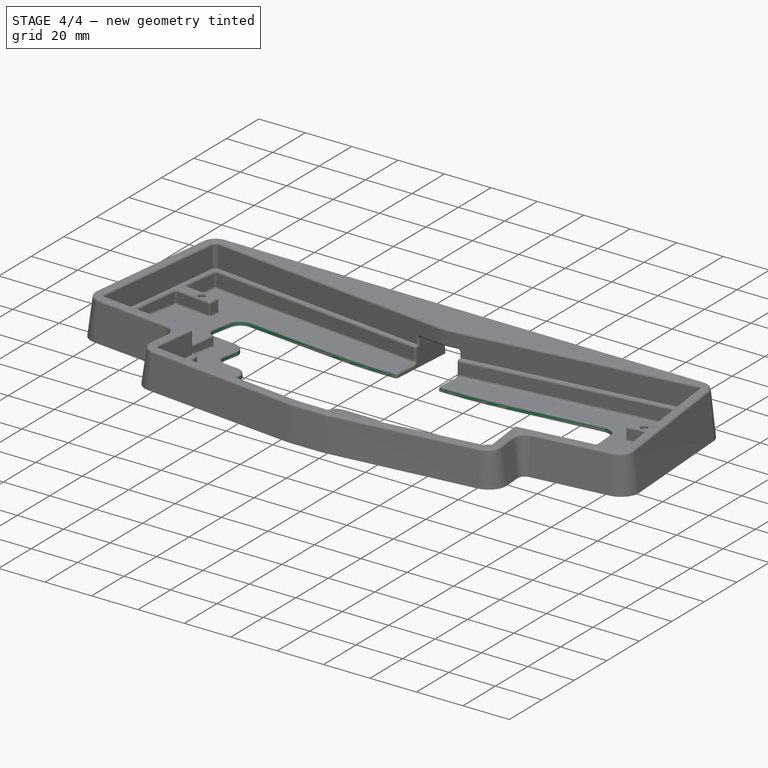
[diagram: stage 4 of 4 — iso view after this stage's code; geometry added in this stage tinted green]
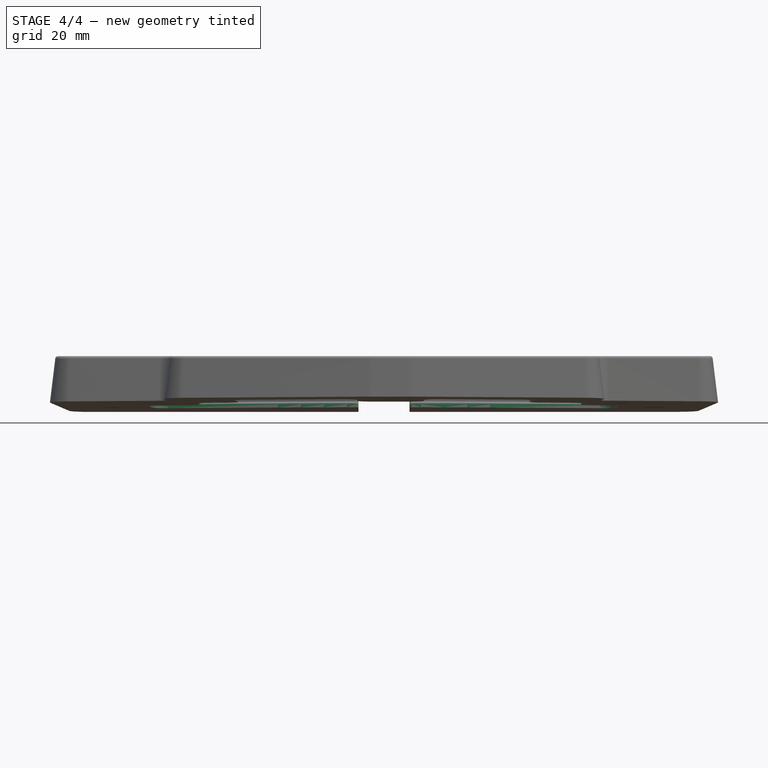
[diagram: stage 4 of 4 — front view after this stage's code; geometry added in this stage tinted green]
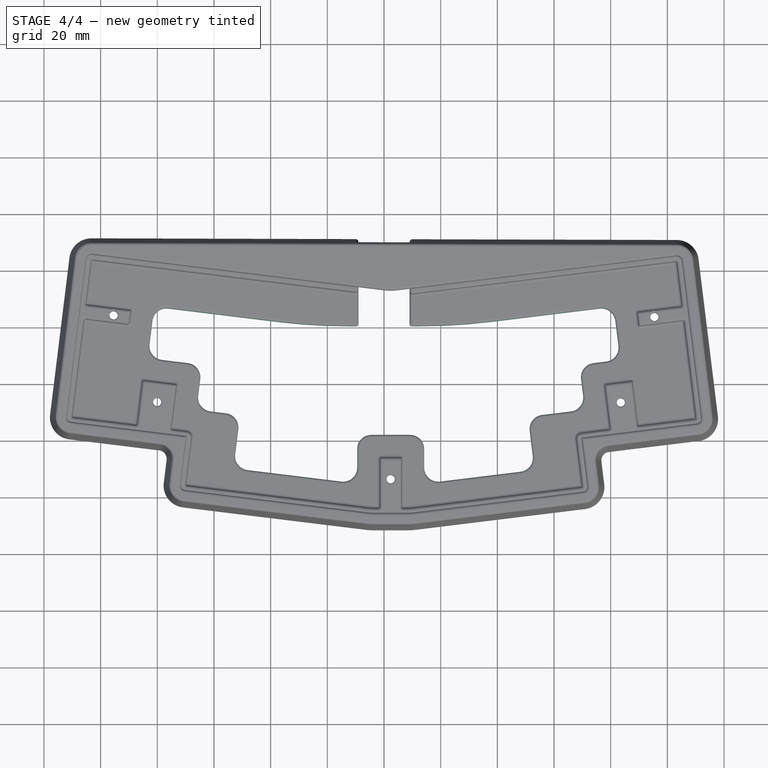
[diagram: stage 4 of 4 — top view after this stage's code; geometry added in this stage tinted green]
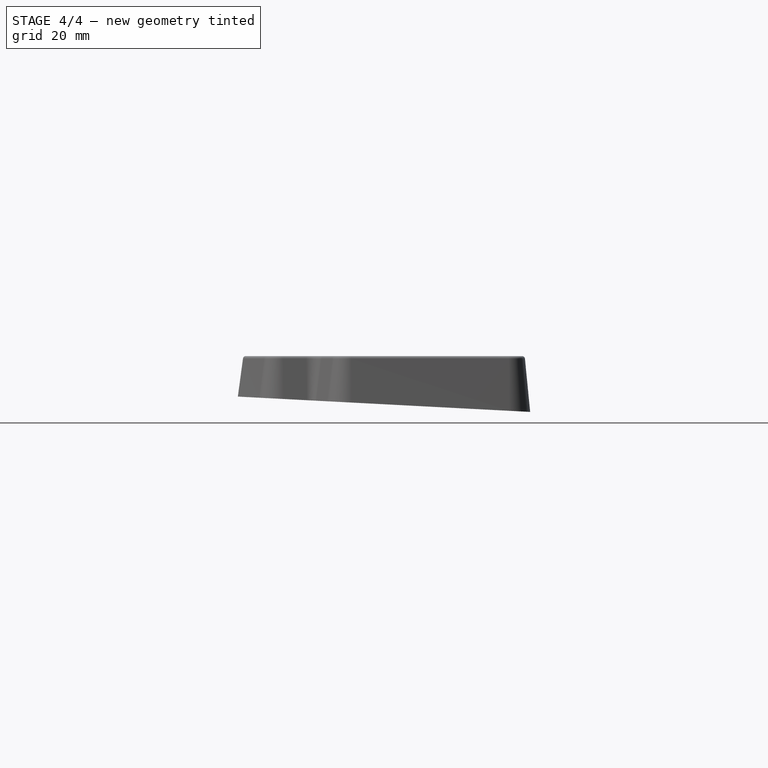
[diagram: stage 4 of 4 — right view after this stage's code; geometry added in this stage tinted green]
FEATURE [Sketcher::SketchObject] Sketch006
  FullyConstrained = false
  MapMode = 5
  Placement = pos=(0,0.104528,1.99452) rot=(-1,0,0;0.05236rad)
  Support = -> [Fillet001]
  sketch-geometry (36):
    g0: ArcOfCircle CenterX=-77.7747 CenterY=13.4837 CenterZ=0 NormalX=0 NormalY=0 NormalZ=1 AngleXU=0 Radius=5 StartAngle=3.01942 EndAngle=4.59022
    g1: LineSegment StartX=-78.384 StartY=8.52097 StartZ=0 EndX=-69.203 EndY=7.39368 EndZ=0
    g2: ArcOfCircle CenterX=-69.8123 CenterY=2.43095 CenterZ=0 NormalX=0 NormalY=0 NormalZ=1 AngleXU=0 Radius=5 StartAngle=6.16101 EndAngle=7.73181
    g3: LineSegment StartX=-64.8496 StartY=1.8216 StartZ=0 EndX=-65.5808 EndY=-4.13367 EndZ=0
    g4: ArcOfCircle CenterX=-60.6181 CenterY=-4.74302 CenterZ=0 NormalX=0 NormalY=0 NormalZ=1 AngleXU=0 Radius=5 StartAngle=3.01942 EndAngle=4.59022
    g5: LineSegment StartX=-61.2274 StartY=-9.70575 StartZ=0 EndX=-55.7684 EndY=-10.376 EndZ=0
    g6: ArcOfCircle CenterX=-56.3778 CenterY=-15.3388 CenterZ=0 NormalX=0 NormalY=0 NormalZ=1 AngleXU=0 Radius=5 StartAngle=6.16101 EndAngle=7.73181
    g7: LineSegment StartX=-51.415 StartY=-15.9481 StartZ=0 EndX=-52.5118 EndY=-24.881 EndZ=0
    g8: ArcOfCircle CenterX=-47.5491 CenterY=-25.4904 CenterZ=0 NormalX=0 NormalY=0 NormalZ=1 AngleXU=0 Radius=5 StartAngle=3.01942 EndAngle=4.59022
    g9: LineSegment StartX=-48.1585 StartY=-30.4531 StartZ=0 EndX=-15.0686 EndY=-34.516 EndZ=0
    g10: ArcOfCircle CenterX=-14.4592 CenterY=-29.5533 CenterZ=0 NormalX=0 NormalY=0 NormalZ=1 AngleXU=0 Radius=5 StartAngle=4.59022 EndAngle=6.28319
    g11: LineSegment StartX=-9.4592 StartY=-29.5533 StartZ=0 EndX=-9.4592 EndY=-23 EndZ=0
    g12: ArcOfCircle CenterX=-4.4592 CenterY=-23 CenterZ=0 NormalX=0 NormalY=0 NormalZ=1 AngleXU=0 Radius=5 StartAngle=1.5708 EndAngle=3.14159
    g13: LineSegment StartX=-4.4592 StartY=-18 StartZ=0 EndX=9.1738 EndY=-18 EndZ=0
    g14: ArcOfCircle CenterX=9.1738 CenterY=-23 CenterZ=0 NormalX=0 NormalY=0 NormalZ=1 AngleXU=0 Radius=5 StartAngle=0 EndAngle=1.5708
    g15: LineSegment StartX=14.1738 StartY=-29.5533 StartZ=0 EndX=14.1738 EndY=-23 EndZ=0
    g16: ArcOfCircle CenterX=19.1738 CenterY=-29.5533 CenterZ=0 NormalX=0 NormalY=0 NormalZ=1 AngleXU=0 Radius=5 StartAngle=3.14159 EndAngle=4.83456
    g17: LineSegment StartX=19.7831 StartY=-34.516 StartZ=0 EndX=48.1585 EndY=-31.032 EndZ=0
    g18: ArcOfCircle CenterX=47.5491 CenterY=-26.0693 CenterZ=0 NormalX=0 NormalY=0 NormalZ=1 AngleXU=0 Radius=5 StartAngle=4.83456 EndAngle=6.40536
    g19: LineSegment StartX=51.415 StartY=-16.527 StartZ=0 EndX=52.5118 EndY=-25.4599 EndZ=0
    g20: ArcOfCircle CenterX=56.3778 CenterY=-15.9176 CenterZ=0 NormalX=0 NormalY=0 NormalZ=1 AngleXU=0 Radius=5 StartAngle=1.69297 EndAngle=3.26377
    g21: LineSegment StartX=55.7684 StartY=-10.9549 StartZ=0 EndX=65.942 EndY=-9.70575 EndZ=0
    g22: ArcOfCircle CenterX=65.3327 CenterY=-4.74302 CenterZ=0 NormalX=0 NormalY=0 NormalZ=1 AngleXU=0 Radius=5 StartAngle=4.83456 EndAngle=6.40536
    g23: ArcOfCircle CenterX=74.5269 CenterY=2.43095 CenterZ=0 NormalX=0 NormalY=0 NormalZ=1 AngleXU=0 Radius=5 StartAngle=1.69297 EndAngle=3.26377
    g24: LineSegment StartX=73.9176 StartY=7.39368 StartZ=0 EndX=78.384 EndY=7.94209 EndZ=0
    g25: ArcOfCircle CenterX=77.7747 CenterY=12.9048 CenterZ=0 NormalX=0 NormalY=0 NormalZ=1 AngleXU=0 Radius=5 StartAngle=4.83456 EndAngle=6.40536
    g26: LineSegment StartX=69.5642 StartY=1.8216 StartZ=0 EndX=70.2954 EndY=-4.13367 EndZ=0
    g27: LineSegment StartX=-82.7374 StartY=14.093 StartZ=0 EndX=-81.7185 EndY=22.3912 EndZ=0
    g28: ArcOfCircle CenterX=-76.7558 CenterY=21.7818 CenterZ=0 NormalX=0 NormalY=0 NormalZ=1 AngleXU=0 Radius=5 StartAngle=1.44862 EndAngle=3.01942
    g29: LineSegment StartX=82.7374 StartY=13.5142 StartZ=0 EndX=81.6485 EndY=22.3826 EndZ=0
    g30: ArcOfCircle CenterX=76.6858 CenterY=21.7732 CenterZ=0 NormalX=0 NormalY=0 NormalZ=1 AngleXU=0 Radius=5 StartAngle=0.122173 EndAngle=1.69297
    g31: LineSegment StartX=37.43 StartY=21.9908 StartZ=0 EndX=76.0764 EndY=26.7359 EndZ=0
    g32: ArcOfCircle CenterX=13.0562 CenterY=220.5 CenterZ=0 NormalX=0 NormalY=0 NormalZ=1 AngleXU=0 Radius=200 StartAngle=4.71239 EndAngle=4.83456
    g33: LineSegment StartX=-76.1464 StartY=26.7445 StartZ=0 EndX=-37.43 EndY=21.9908 EndZ=0
    g34: LineSegment StartX=-13.0562 StartY=20.5 StartZ=0 EndX=13.0562 EndY=20.5 EndZ=0
    g35: ArcOfCircle CenterX=-13.0562 CenterY=220.5 CenterZ=0 NormalX=0 NormalY=0 NormalZ=1 AngleXU=0 Radius=200 StartAngle=4.59022 EndAngle=4.71239
  constraints (36):
    c: Coincident(g0,g27)
    c: Coincident(g27,g28)
    c: Coincident(g0,g1)
    c: Coincident(g28,g33)
    c: Coincident(g1,g2)
    c: Coincident(g3,g4)
    c: Coincident(g2,g3)
    c: Coincident(g4,g5)
    c: Coincident(g5,g6)
    c: Coincident(g7,g8)
    c: Coincident(g6,g7)
    c: Coincident(g8,g9)
    c: Coincident(g33,g35)
    c: Coincident(g9,g10)
    c: Coincident(g34,g35)
    c: Coincident(g10,g11)
    c: Coincident(g11,g12)
    c: Coincident(g12,g13)
    c: Coincident(g13,g14)
    c: Coincident(g32,g34)
    c: Coincident(g15,g16)
    c: Coincident(g14,g15)
    c: Coincident(g16,g17)
    c: Coincident(g31,g32)
    c: Coincident(g17,g18)
    c: Coincident(g19,g20)
    c: Coincident(g18,g19)
    c: Coincident(g20,g21)
    c: Coincident(g21,g22)
    c: Coincident(g23,g26)
    c: Coincident(g22,g26)
    c: Coincident(g23,g24)
    c: Coincident(g30,g31)
    c: Coincident(g24,g25)
    c: Coincident(g29,g30)
    c: Coincident(g25,g29)
FEATURE [PartDesign::Pocket] Pocket003
  BaseFeature = -> Fillet001
  Direction = (0,-0.052336,-0.99863)
  Length = 5
  Length2 = 5
  Profile = -> Sketch006
  ReferenceAxis = -> Sketch006 [N_Axis]
  Type = 1
FEATURE [PartDesign::Fillet] Fillet002
  Base = -> Pocket003 [Edge90]
  BaseFeature = -> Pocket003
  Radius = 0.85
  SupportTransform = false
  UseAllEdges = false
FEATURE [PartDesign::Fillet] Fillet003
  Base = -> Fillet002 [Edge67,Edge65,Edge66,Edge68,Edge69]
  BaseFeature = -> Fillet002
  Radius = 1
  SupportTransform = false
  UseAllEdges = false
FEATURE [PartDesign::Body] Body
  Group = -> [Sketch,Sketch001,Sketch002,AdditiveLoft,Pocket,Sketch003,Pocket001,Sketch004,Hole,Sketch005,Pocket002,Fillet,Chamfer,Fillet001,Sketch006,Pocket003,Fillet002,Fillet003]
  Origin = -> Origin
  Placement = pos=(0,0,0) rot=(1,0,0;0.05236rad)
  Tip = -> Fillet003
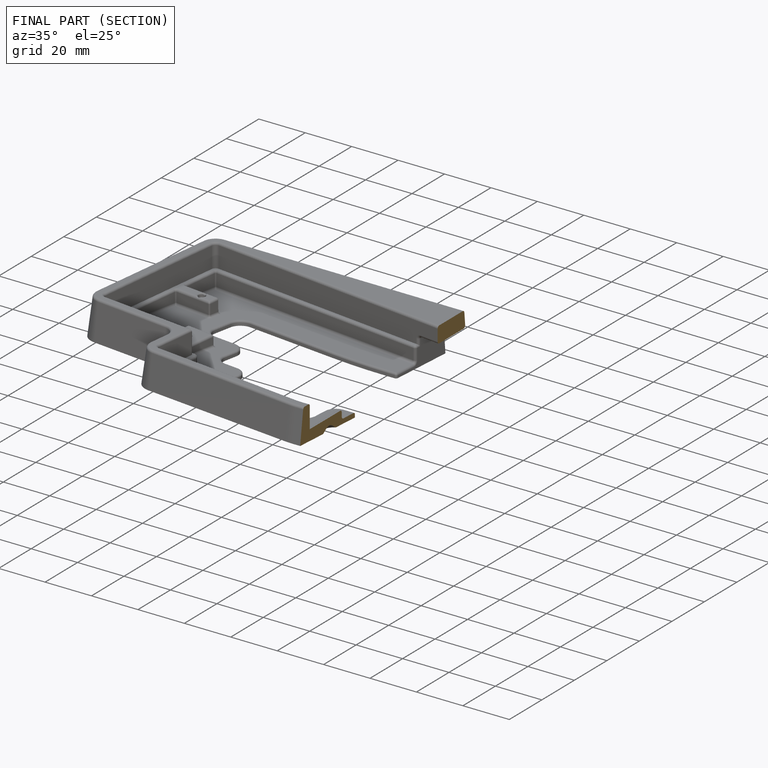
[diagram: finished part — half-section view (interior)]
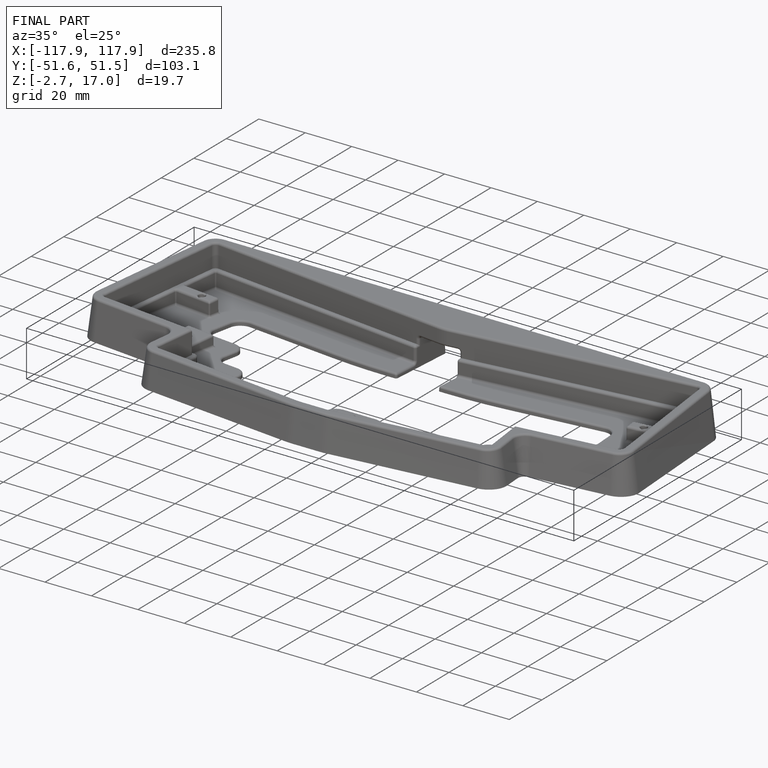
[diagram: finished part — iso view with bounding-box wireframe]
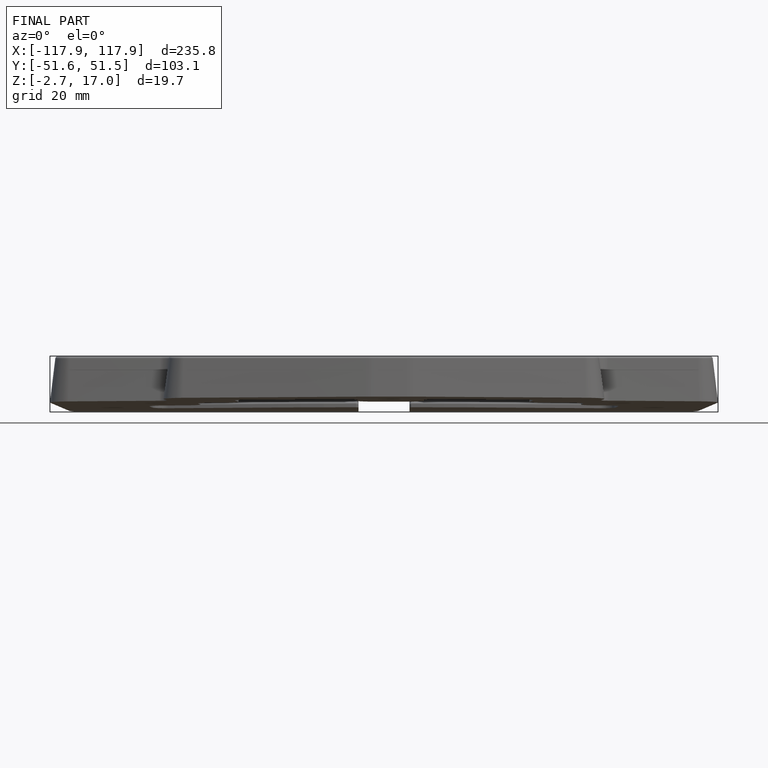
[diagram: finished part — front view with bounding-box wireframe]
